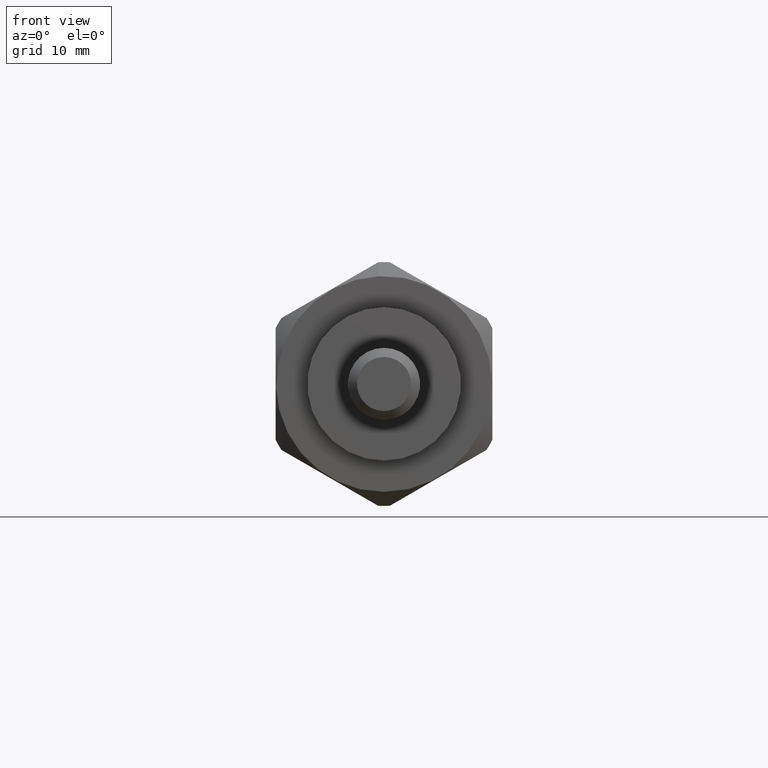
[diagram: clean part render]
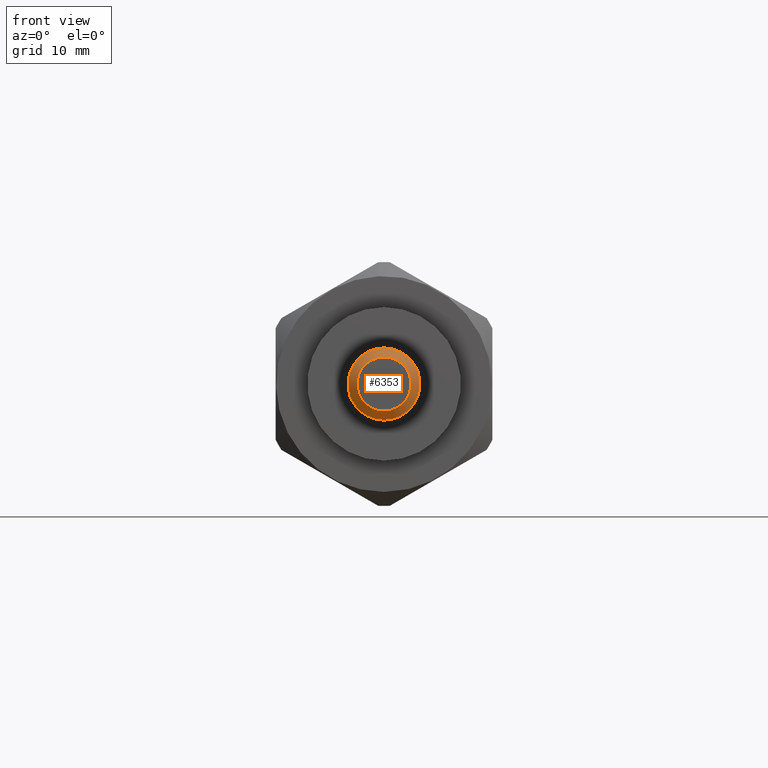
[diagram: same view with one face highlighted and labeled with its STEP entity id]
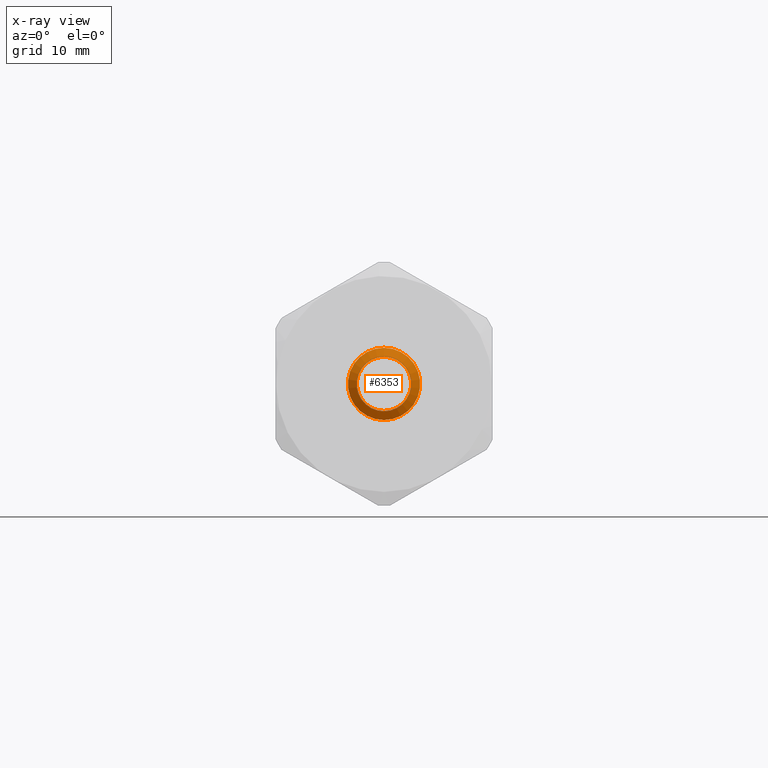
[diagram: x-ray of the same camera — body ghosted, the highlighted face saturated]
A machine part, front view. The second image highlights one B-rep face of the part: STEP entity #6353.
The next image is the same camera in x-ray: the body ghosted, the highlighted face saturated — about 0% of this face is hidden behind the body in this view.
In plain terms, the highlighted conical surface has half-angle 45 deg.
Its self-contained STEP definition (entity closure, byte-faithful):
#373 = DIRECTION ( 'NONE',  ( 0.000000000000000000, 0.000000000000000000, -1.000000000000000000 ) ) ;
#701 = EDGE_CURVE ( 'NONE', #3929, #3929, #3056, .T. ) ;
#1349 = EDGE_LOOP ( 'NONE', ( #2024 ) ) ;
#1665 = FACE_OUTER_BOUND ( 'NONE', #4319, .T. ) ;
#1742 = DIRECTION ( 'NONE',  ( 0.000000000000000000, 0.000000000000000000, 1.000000000000000000 ) ) ;
#1831 = DIRECTION ( 'NONE',  ( 0.000000000000000000, 1.000000000000000000, 0.000000000000000000 ) ) ;
#1886 = DIRECTION ( 'NONE',  ( 0.000000000000000000, 0.000000000000000000, -1.000000000000000000 ) ) ;
#2024 = ORIENTED_EDGE ( 'NONE', *, *, #701, .F. ) ;
#2269 = CARTESIAN_POINT ( 'NONE',  ( 0.000000000000000000, -23.34999999999999787, -4.000000000000000000 ) ) ;
#2389 = AXIS2_PLACEMENT_3D ( 'NONE', #4778, #1831, #1742 ) ;
#3056 = CIRCLE ( 'NONE', #4101, 3.000000000000000000 ) ;
#3929 = VERTEX_POINT ( 'NONE', #6444 ) ;
#4101 = AXIS2_PLACEMENT_3D ( 'NONE', #4128, #6029, #373 ) ;
#4128 = CARTESIAN_POINT ( 'NONE',  ( 0.000000000000000000, -24.35000000000000142, 0.000000000000000000 ) ) ;
#4176 = VERTEX_POINT ( 'NONE', #2269 ) ;
#4319 = EDGE_LOOP ( 'NONE', ( #7565 ) ) ;
#4456 = AXIS2_PLACEMENT_3D ( 'NONE', #7471, #5006, #1886 ) ;
#4778 = CARTESIAN_POINT ( 'NONE',  ( 0.000000000000000000, -24.35000000000000142, 0.000000000000000000 ) ) ;
#5006 = DIRECTION ( 'NONE',  ( 0.000000000000000000, 1.000000000000000000, 0.000000000000000000 ) ) ;
#5265 = EDGE_CURVE ( 'NONE', #4176, #4176, #5776, .T. ) ;
#5776 = CIRCLE ( 'NONE', #4456, 4.000000000000000000 ) ;
#5956 = CONICAL_SURFACE ( 'NONE', #2389, 3.000000000000000000, 0.7853981633974447263 ) ;
#6029 = DIRECTION ( 'NONE',  ( 0.000000000000000000, -1.000000000000000000, 0.000000000000000000 ) ) ;
#6353 = ADVANCED_FACE ( 'NONE', ( #7231, #1665 ), #5956, .T. ) ;
#6444 = CARTESIAN_POINT ( 'NONE',  ( 0.000000000000000000, -24.35000000000000142, -3.000000000000000000 ) ) ;
#7231 = FACE_BOUND ( 'NONE', #1349, .T. ) ;
#7471 = CARTESIAN_POINT ( 'NONE',  ( 0.000000000000000000, -23.34999999999999787, 0.000000000000000000 ) ) ;
#7565 = ORIENTED_EDGE ( 'NONE', *, *, #5265, .F. ) ;